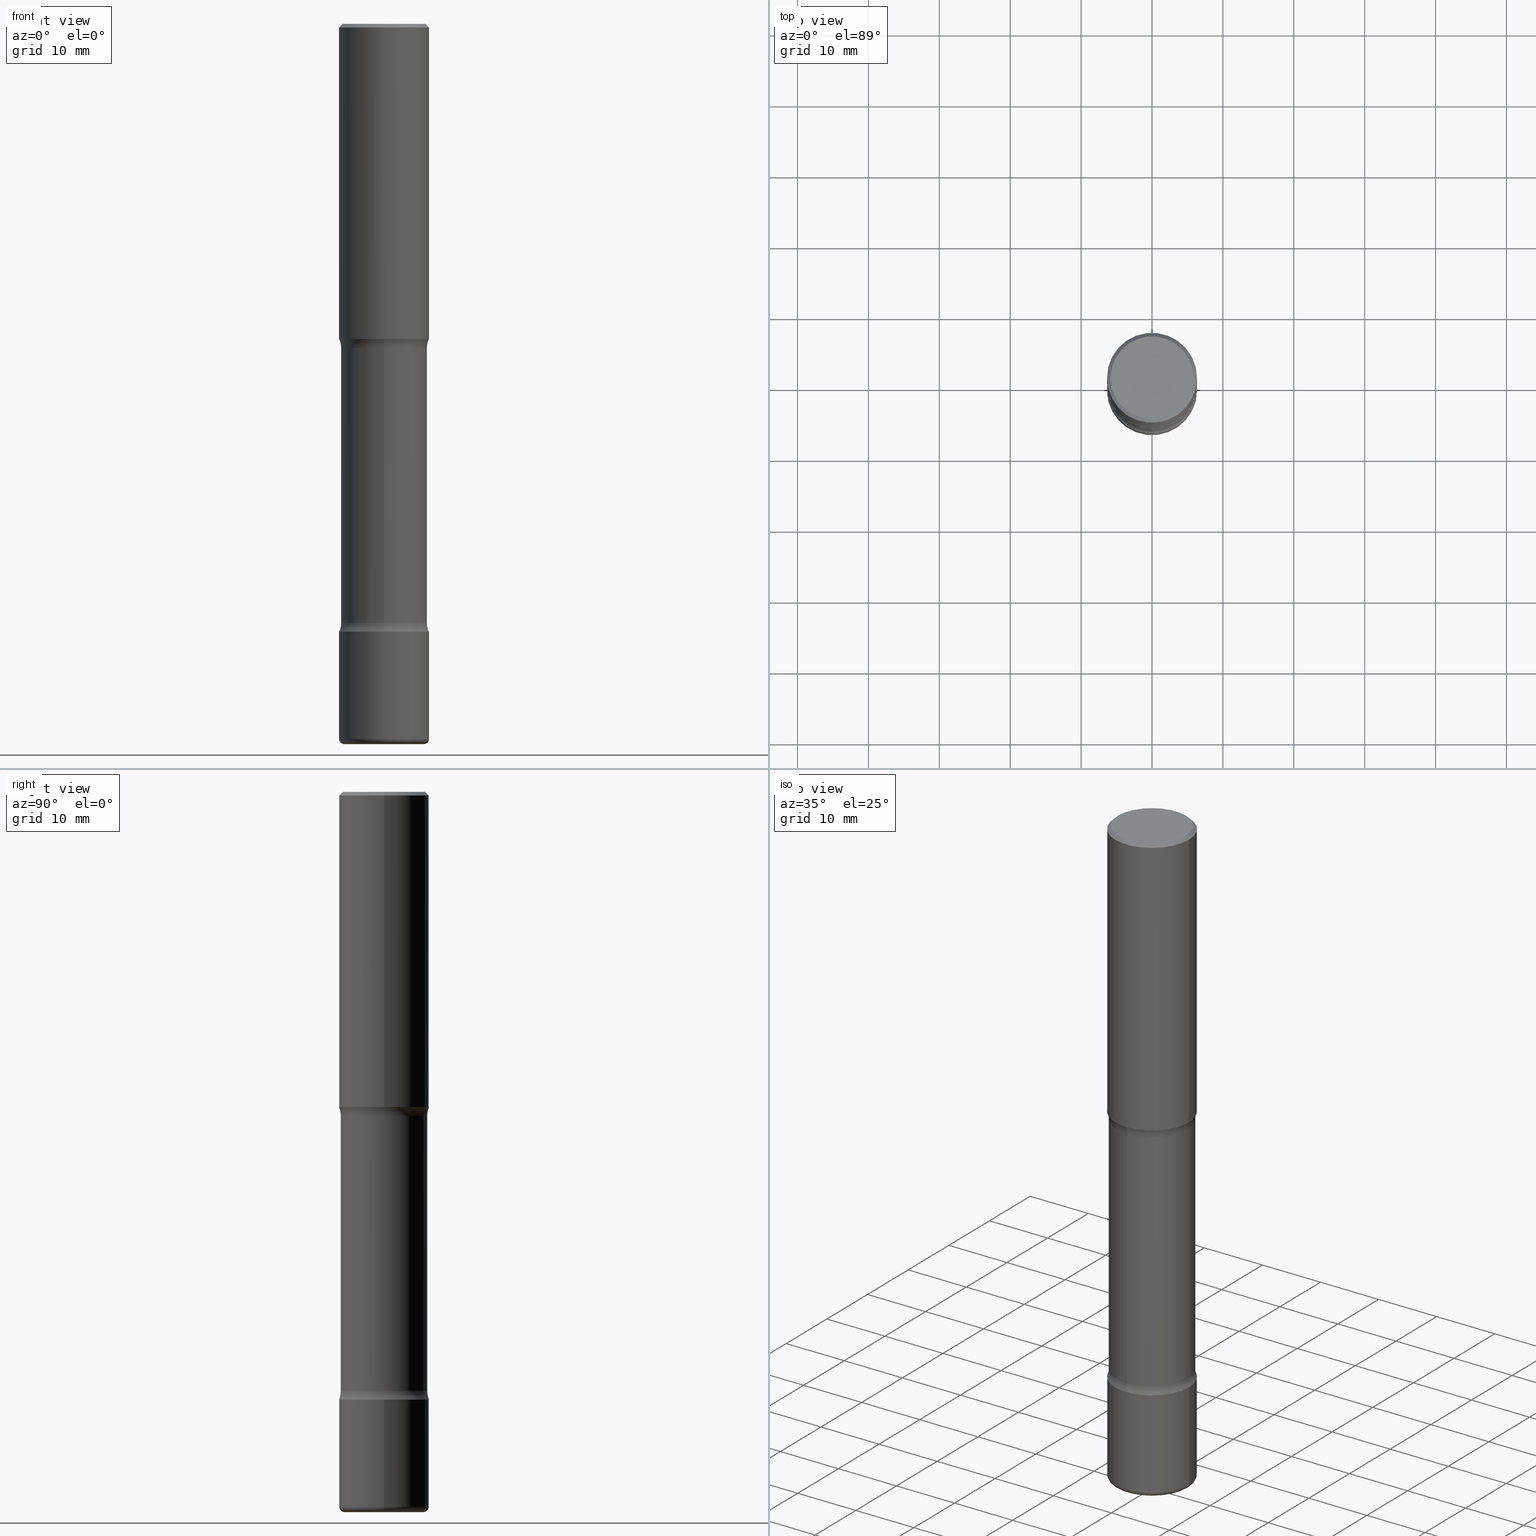
[diagram: canonical four-view strip — front | top / right | iso, engineering-drawing reading convention]
A machine part, canonical four-view strip (front | top / right | iso — engineering-drawing reading convention). The complete STEP part file that produces these views, byte-faithful:
ISO-10303-21;
HEADER;
FILE_DESCRIPTION (( 'STEP AP203' ),
    '1' );
FILE_NAME ('33512.STEP',
    '2024-03-01T22:42:19',
    ( '' ),
    ( '' ),
    'SwSTEP 2.0',
    'SolidWorks 2023',
    '' );
FILE_SCHEMA (( 'CONFIG_CONTROL_DESIGN' ));
ENDSEC;

DATA;
#1 = CLOSED_SHELL ( 'NONE', ( #302, #78, #387, #525, #112, #440 ) ) ;
#2 = VECTOR ( 'NONE', #270, 39.37007874015748143 ) ;
#3 = ORIENTED_EDGE ( 'NONE', *, *, #30, .F. ) ;
#4 = LOCAL_TIME ( 17, 42, 19.00000000000000000, #6 ) ;
#5 = ORIENTED_EDGE ( 'NONE', *, *, #121, .T. ) ;
#6 = COORDINATED_UNIVERSAL_TIME_OFFSET ( 5, 0, .BEHIND. ) ;
#7 = TOROIDAL_SURFACE ( 'NONE', #328, 0.2200000000000003619, 0.02999999999999998848 ) ;
#8 = MANIFOLD_SOLID_BREP ( 'Body-Move/Copy2[4]', #138 ) ;
#9 = ORIENTED_EDGE ( 'NONE', *, *, #303, .F. ) ;
#10 = DIRECTION ( 'NONE',  ( 2.445468806185136597E-29, -3.491481338843145583E-15, -1.000000000000000000 ) ) ;
#11 = DIRECTION ( 'NONE',  ( 1.000000000000000000, -6.982962677686267499E-15, 4.876176775795936353E-29 ) ) ;
#12 = CARTESIAN_POINT ( 'NONE',  ( -0.2200000000000003619, -1.229798689653506559E-14, -3.970000000000000195 ) ) ;
#13 = VECTOR ( 'NONE', #297, 39.37007874015748143 ) ;
#14 = EDGE_CURVE ( 'NONE', #68, #31, #109, .T. ) ;
#15 = DIRECTION ( 'NONE',  ( 1.000000000000000000, -6.982962677686270655E-15, 0.000000000000000000 ) ) ;
#16 = ORIENTED_EDGE ( 'NONE', *, *, #30, .T. ) ;
#17 = CARTESIAN_POINT ( 'NONE',  ( -2.504081769186527752E-15, -0.3650000000000117040, -3.326010205144334098 ) ) ;
#18 = EDGE_CURVE ( 'NONE', #431, #379, #96, .T. ) ;
#19 = PRODUCT ( '33512', '33512', '', ( #347 ) ) ;
#20 = EDGE_CURVE ( 'NONE', #173, #62, #224, .T. ) ;
#21 = EDGE_LOOP ( 'NONE', ( #295, #44, #3, #292 ) ) ;
#22 = DIRECTION ( 'NONE',  ( -6.982962677686266711E-15, -1.000000000000000000, 3.491481338843145583E-15 ) ) ;
#23 = DIRECTION ( 'NONE',  ( 1.000000000000000000, -6.982962677686267499E-15, 4.876176775795936353E-29 ) ) ;
#24 = AXIS2_PLACEMENT_3D ( 'NONE', #269, #49, #320 ) ;
#25 = AXIS2_PLACEMENT_3D ( 'NONE', #407, #22, #15 ) ;
#26 = ORIENTED_EDGE ( 'NONE', *, *, #281, .T. ) ;
#27 = APPLICATION_PROTOCOL_DEFINITION ( 'international standard', 'config_control_design', 1994, #492 ) ;
#28 = DIRECTION ( 'NONE',  ( -1.000000000000000000, 6.982962677686265922E-15, -4.876176775795935793E-29 ) ) ;
#29 = FACE_OUTER_BOUND ( 'NONE', #21, .T. ) ;
#30 = EDGE_CURVE ( 'NONE', #108, #176, #496, .T. ) ;
#31 = VERTEX_POINT ( 'NONE', #336 ) ;
#32 = CARTESIAN_POINT ( 'NONE',  ( 0.000000000000000000, 0.000000000000000000, 0.000000000000000000 ) ) ;
#33 = EDGE_LOOP ( 'NONE', ( #120, #333, #360, #9 ) ) ;
#34 = FACE_OUTER_BOUND ( 'NONE', #80, .T. ) ;
#35 = AXIS2_PLACEMENT_3D ( 'NONE', #249, #353, #520 ) ;
#36 = AXIS2_PLACEMENT_3D ( 'NONE', #312, #100, #11 ) ;
#37 = ORGANIZATION ( 'UNSPECIFIED', 'UNSPECIFIED', '' ) ;
#38 = ORIENTED_EDGE ( 'NONE', *, *, #227, .T. ) ;
#39 = CARTESIAN_POINT ( 'NONE',  ( 8.253457220874836014E-29, -1.178374951859561452E-14, -3.375000000000000000 ) ) ;
#40 = ORIENTED_EDGE ( 'NONE', *, *, #215, .F. ) ;
#41 = CALENDAR_DATE ( 2024, 1, 3 ) ;
#42 = DATE_AND_TIME ( #41, #45 ) ;
#43 = AXIS2_PLACEMENT_3D ( 'NONE', #199, #61, #460 ) ;
#44 = ORIENTED_EDGE ( 'NONE', *, *, #380, .T. ) ;
#45 = LOCAL_TIME ( 17, 42, 19.00000000000000000, #214 ) ;
#46 = ORIENTED_EDGE ( 'NONE', *, *, #327, .T. ) ;
#47 = DIRECTION ( 'NONE',  ( -1.000000000000000000, 6.982962677686267499E-15, 0.000000000000000000 ) ) ;
#48 = ADVANCED_BREP_SHAPE_REPRESENTATION ( '33512', ( #192, #389, #8, #429 ), #383 ) ;
#49 = DIRECTION ( 'NONE',  ( -1.000000000000000000, 6.982962677686265922E-15, -4.883557194083112340E-29 ) ) ;
#50 = DIRECTION ( 'NONE',  ( 1.000000000000000000, -6.982962677686265922E-15, 4.876225828469305518E-29 ) ) ;
#51 = DIRECTION ( 'NONE',  ( -2.445468806185136597E-29, 3.491481338843145583E-15, 1.000000000000000000 ) ) ;
#52 = CARTESIAN_POINT ( 'NONE',  ( 0.2300000000000001488, -1.681434332853599997E-15, 4.268512490111905999E-18 ) ) ;
#53 = CIRCLE ( 'NONE', #139, 0.2399999999999991585 ) ;
#54 = AXIS2_PLACEMENT_3D ( 'NONE', #538, #234, #140 ) ;
#55 = ADVANCED_FACE ( 'NONE', ( #29 ), #338, .T. ) ;
#56 = ORIENTED_EDGE ( 'NONE', *, *, #547, .F. ) ;
#57 = DIRECTION ( 'NONE',  ( 2.131045706918198209E-29, -3.941753112844835198E-15, -1.000000000000000000 ) ) ;
#58 = DIRECTION ( 'NONE',  ( 2.131045706918198209E-29, -3.941753112844835198E-15, -1.000000000000000000 ) ) ;
#59 = ORIENTED_EDGE ( 'NONE', *, *, #437, .T. ) ;
#60 = DIRECTION ( 'NONE',  ( -2.445468806185136597E-29, 3.491481338843145583E-15, 1.000000000000000000 ) ) ;
#61 = DIRECTION ( 'NONE',  ( -2.445468806185136597E-29, 3.491481338843145583E-15, 1.000000000000000000 ) ) ;
#62 = VERTEX_POINT ( 'NONE', #245 ) ;
#63 = DIRECTION ( 'NONE',  ( 0.000000000000000000, 0.000000000000000000, 1.000000000000000000 ) ) ;
#64 = DIRECTION ( 'NONE',  ( 2.131045706918198209E-29, -3.941753112844835198E-15, -1.000000000000000000 ) ) ;
#65 = CIRCLE ( 'NONE', #456, 0.2500000000000003331 ) ;
#66 = ORIENTED_EDGE ( 'NONE', *, *, #126, .F. ) ;
#67 = DIRECTION ( 'NONE',  ( 1.000000000000000000, -6.982962677686265133E-15, 0.000000000000000000 ) ) ;
#68 = VERTEX_POINT ( 'NONE', #505 ) ;
#69 = PLANE ( 'NONE',  #349 ) ;
#70 = DIRECTION ( 'NONE',  ( -2.445468806185136597E-29, 3.491481338843145583E-15, 1.000000000000000000 ) ) ;
#71 = EDGE_LOOP ( 'NONE', ( #219, #207 ) ) ;
#72 = CARTESIAN_POINT ( 'NONE',  ( 4.790507947132762699E-29, -5.378400710222759193E-15, -1.750000000000000000 ) ) ;
#73 = APPROVAL_DATE_TIME ( #174, #409 ) ;
#74 = DIRECTION ( 'NONE',  ( 1.000000000000000000, -6.982962677686266711E-15, 4.876176775795935793E-29 ) ) ;
#75 = CALENDAR_DATE ( 2024, 1, 3 ) ;
#76 = AXIS2_PLACEMENT_3D ( 'NONE', #32, #165, #23 ) ;
#77 = EDGE_CURVE ( 'NONE', #413, #339, #392, .T. ) ;
#78 = ADVANCED_FACE ( 'NONE', ( #103 ), #7, .T. ) ;
#79 = UNCERTAINTY_MEASURE_WITH_UNIT (LENGTH_MEASURE( 1.000000000000000082E-05 ), #250, 'distance_accuracy_value', 'NONE');
#80 = EDGE_LOOP ( 'NONE', ( #311, #146 ) ) ;
#81 = ORIENTED_EDGE ( 'NONE', *, *, #424, .F. ) ;
#82 = AXIS2_PLACEMENT_3D ( 'NONE', #425, #549, #74 ) ;
#83 = CIRCLE ( 'NONE', #417, 0.2500000000000003331 ) ;
#84 = PERSON_AND_ORGANIZATION_ROLE ( 'design_supplier' ) ;
#85 = ORIENTED_EDGE ( 'NONE', *, *, #488, .T. ) ;
#86 = DIRECTION ( 'NONE',  ( 6.982962677686265922E-15, 1.000000000000000000, -3.941753112844835198E-15 ) ) ;
#87 = EDGE_LOOP ( 'NONE', ( #418, #189, #46, #59 ) ) ;
#88 = VECTOR ( 'NONE', #271, 39.37007874015748143 ) ;
#89 = DIRECTION ( 'NONE',  ( -2.445468806185136597E-29, 3.491481338843145583E-15, 1.000000000000000000 ) ) ;
#90 = AXIS2_PLACEMENT_3D ( 'NONE', #465, #240, #247 ) ;
#91 = FACE_OUTER_BOUND ( 'NONE', #461, .T. ) ;
#92 = DIRECTION ( 'NONE',  ( -1.000000000000000000, 7.105427357600993970E-15, 0.000000000000000000 ) ) ;
#93 = DIRECTION ( 'NONE',  ( -2.445468806185136597E-29, 3.491481338843145583E-15, 1.000000000000000000 ) ) ;
#94 = DIRECTION ( 'NONE',  ( 1.000000000000000000, -6.860497997771530774E-15, 4.835284640756367207E-29 ) ) ;
#95 = DIRECTION ( 'NONE',  ( 6.982962677686265922E-15, 1.000000000000000000, -4.370956789862815627E-15 ) ) ;
#96 = CIRCLE ( 'NONE', #177, 0.2500000000000003331 ) ;
#97 = VERTEX_POINT ( 'NONE', #117 ) ;
#98 = PERSON_AND_ORGANIZATION ( #232, #37 ) ;
#99 = AXIS2_PLACEMENT_3D ( 'NONE', #500, #115, #107 ) ;
#100 = DIRECTION ( 'NONE',  ( -2.445468806185136597E-29, 3.491481338843145583E-15, 1.000000000000000000 ) ) ;
#101 = EDGE_LOOP ( 'NONE', ( #438, #66, #470, #515 ) ) ;
#102 = DIRECTION ( 'NONE',  ( 6.982962677686265922E-15, 1.000000000000000000, -3.941753112844835198E-15 ) ) ;
#103 = FACE_OUTER_BOUND ( 'NONE', #543, .T. ) ;
#104 = ORIENTED_EDGE ( 'NONE', *, *, #307, .T. ) ;
#105 = DIRECTION ( 'NONE',  ( 2.131045706918198209E-29, -3.941753112844835198E-15, -1.000000000000000000 ) ) ;
#106 = DIRECTION ( 'NONE',  ( 6.982962677686265922E-15, 1.000000000000000000, -4.553079989440439881E-15 ) ) ;
#107 = DIRECTION ( 'NONE',  ( 1.000000000000000000, -6.982962677686267499E-15, 0.000000000000000000 ) ) ;
#108 = VERTEX_POINT ( 'NONE', #236 ) ;
#109 = CIRCLE ( 'NONE', #35, 0.2399999999999999356 ) ;
#110 = AXIS2_PLACEMENT_3D ( 'NONE', #485, #133, #531 ) ;
#111 = TOROIDAL_SURFACE ( 'NONE', #306, 0.3650000000000000466, 0.1250000000000000555 ) ;
#112 = ADVANCED_FACE ( 'NONE', ( #416 ), #202, .T. ) ;
#113 = ORIENTED_EDGE ( 'NONE', *, *, #281, .F. ) ;
#114 = DIRECTION ( 'NONE',  ( 6.982962677686265922E-15, 1.000000000000000000, -4.370956789862832194E-15 ) ) ;
#115 = DIRECTION ( 'NONE',  ( -2.445468806185136597E-29, 3.491481338843145583E-15, 1.000000000000000000 ) ) ;
#116 = LINE ( 'NONE', #201, #172 ) ;
#117 = CARTESIAN_POINT ( 'NONE',  ( -0.2500000000000003331, -1.104610837750119891E-14, -3.375000000000000000 ) ) ;
#118 = COORDINATED_UNIVERSAL_TIME_OFFSET ( 5, 0, .BEHIND. ) ;
#119 = ADVANCED_FACE ( 'NONE', ( #155 ), #396, .T. ) ;
#120 = ORIENTED_EDGE ( 'NONE', *, *, #254, .T. ) ;
#121 = EDGE_CURVE ( 'NONE', #376, #108, #513, .T. ) ;
#122 = SECURITY_CLASSIFICATION_LEVEL ( 'unclassified' ) ;
#123 = AXIS2_PLACEMENT_3D ( 'NONE', #151, #208, #284 ) ;
#124 = ORIENTED_EDGE ( 'NONE', *, *, #227, .F. ) ;
#125 = DIMENSIONAL_EXPONENTS ( 1.000000000000000000, 0.000000000000000000, 0.000000000000000000, 0.000000000000000000, 0.000000000000000000, 0.000000000000000000, 0.000000000000000000 ) ;
#126 = EDGE_CURVE ( 'NONE', #309, #376, #289, .T. ) ;
#127 = APPROVAL_STATUS ( 'not_yet_approved' ) ;
#128 = EDGE_CURVE ( 'NONE', #502, #97, #404, .T. ) ;
#129 = DATE_TIME_ROLE ( 'classification_date' ) ;
#130 = ORIENTED_EDGE ( 'NONE', *, *, #401, .T. ) ;
#131 = AXIS2_PLACEMENT_3D ( 'NONE', #443, #402, #316 ) ;
#132 = AXIS2_PLACEMENT_3D ( 'NONE', #420, #377, #28 ) ;
#133 = DIRECTION ( 'NONE',  ( -2.131045706918197928E-29, 3.941753112844835198E-15, 1.000000000000000000 ) ) ;
#134 = ORIENTED_EDGE ( 'NONE', *, *, #501, .T. ) ;
#135 = COORDINATED_UNIVERSAL_TIME_OFFSET ( 5, 0, .BEHIND. ) ;
#136 = ADVANCED_FACE ( 'NONE', ( #34 ), #203, .F. ) ;
#137 = ADVANCED_FACE ( 'NONE', ( #386 ), #69, .F. ) ;
#138 = CLOSED_SHELL ( 'NONE', ( #462, #430, #480, #291, #399, #170, #167, #546 ) ) ;
#139 = AXIS2_PLACEMENT_3D ( 'NONE', #313, #182, #397 ) ;
#140 = DIRECTION ( 'NONE',  ( 6.982962677686265922E-15, 1.000000000000000000, -3.941753112844835198E-15 ) ) ;
#141 = AXIS2_PLACEMENT_3D ( 'NONE', #553, #58, #504 ) ;
#142 = CARTESIAN_POINT ( 'NONE',  ( 4.279570410823988484E-29, -6.110092342975504671E-15, -1.750000000000000000 ) ) ;
#143 = APPLICATION_PROTOCOL_DEFINITION ( 'international standard', 'config_control_design', 1994, #519 ) ;
#144 = FACE_OUTER_BOUND ( 'NONE', #246, .T. ) ;
#145 = DIRECTION ( 'NONE',  ( 1.000000000000000000, -6.982962677686267499E-15, 0.000000000000000000 ) ) ;
#146 = ORIENTED_EDGE ( 'NONE', *, *, #237, .F. ) ;
#147 = DIRECTION ( 'NONE',  ( 1.000000000000000000, -6.982962677686267499E-15, 0.000000000000000000 ) ) ;
#148 = DIRECTION ( 'NONE',  ( 1.000000000000000000, -6.982962677686269077E-15, 0.000000000000000000 ) ) ;
#149 = CARTESIAN_POINT ( 'NONE',  ( -0.2500000000000002220, 1.776356839400252042E-15, -1.229733772563727566E-29 ) ) ;
#150 = AXIS2_PLACEMENT_3D ( 'NONE', #489, #220, #86 ) ;
#151 = CARTESIAN_POINT ( 'NONE',  ( 4.279570410823988484E-29, -6.110092342975504671E-15, -1.750000000000000000 ) ) ;
#152 = ORIENTED_EDGE ( 'NONE', *, *, #372, .F. ) ;
#153 = CARTESIAN_POINT ( 'NONE',  ( -1.715124499442829642E-15, -0.2500000000000046629, -1.749999999999999112 ) ) ;
#154 = LINE ( 'NONE', #149, #357 ) ;
#155 = FACE_OUTER_BOUND ( 'NONE', #101, .T. ) ;
#156 = ORIENTED_EDGE ( 'NONE', *, *, #466, .T. ) ;
#157 = DIRECTION ( 'NONE',  ( -1.000000000000000000, 6.982962677686265922E-15, -4.876176775795935793E-29 ) ) ;
#158 = DIRECTION ( 'NONE',  ( -2.445468806185136597E-29, 3.491481338843145583E-15, 1.000000000000000000 ) ) ;
#159 = FACE_OUTER_BOUND ( 'NONE', #196, .T. ) ;
#160 = DIRECTION ( 'NONE',  ( 1.000000000000000000, -6.982962677686269077E-15, 4.883557194083113462E-29 ) ) ;
#161 = VECTOR ( 'NONE', #264, 39.37007874015748143 ) ;
#162 = CIRCLE ( 'NONE', #483, 0.2500000000000003331 ) ;
#163 = CYLINDRICAL_SURFACE ( 'NONE', #351, 0.2399999999999995470 ) ;
#164 = CIRCLE ( 'NONE', #474, 0.2499999999999993616 ) ;
#165 = DIRECTION ( 'NONE',  ( -2.445468806185136597E-29, 3.491481338843145583E-15, 1.000000000000000000 ) ) ;
#166 = PERSON_AND_ORGANIZATION_ROLE ( 'creator' ) ;
#167 = ADVANCED_FACE ( 'NONE', ( #230 ), #171, .F. ) ;
#168 = DIRECTION ( 'NONE',  ( 2.131045706918198209E-29, -3.941753112844835198E-15, -1.000000000000000000 ) ) ;
#169 = APPROVAL ( #469, 'UNSPECIFIED' ) ;
#170 = ADVANCED_FACE ( 'NONE', ( #178 ), #526, .F. ) ;
#171 = TOROIDAL_SURFACE ( 'NONE', #150, 0.3650000000000000466, 0.1250000000000000555 ) ;
#172 = VECTOR ( 'NONE', #258, 39.37007874015748143 ) ;
#173 = VERTEX_POINT ( 'NONE', #310 ) ;
#174 = DATE_AND_TIME ( #400, #557 ) ;
#175 = PERSON_AND_ORGANIZATION ( #232, #37 ) ;
#176 = VERTEX_POINT ( 'NONE', #406 ) ;
#177 = AXIS2_PLACEMENT_3D ( 'NONE', #259, #200, #67 ) ;
#178 = FACE_OUTER_BOUND ( 'NONE', #506, .T. ) ;
#179 = VERTEX_POINT ( 'NONE', #479 ) ;
#180 = EDGE_CURVE ( 'NONE', #309, #176, #218, .T. ) ;
#181 = EDGE_LOOP ( 'NONE', ( #152, #40, #375, #423 ) ) ;
#182 = DIRECTION ( 'NONE',  ( 2.131045706918198209E-29, -3.941753112844835198E-15, -1.000000000000000000 ) ) ;
#183 = DIRECTION ( 'NONE',  ( 1.000000000000000000, -6.860497997771530774E-15, 4.835284640756367207E-29 ) ) ;
#184 = CARTESIAN_POINT ( 'NONE',  ( -0.2500000000000001110, 1.675911042644704760E-15, -0.02000000000000000042 ) ) ;
#185 = AXIS2_PLACEMENT_3D ( 'NONE', #491, #89, #147 ) ;
#186 = CARTESIAN_POINT ( 'NONE',  ( -1.043851414335219820E-46, 1.490343170380447200E-32, 4.268512490100411279E-18 ) ) ;
#187 = CIRCLE ( 'NONE', #141, 0.2499999999999993616 ) ;
#188 = DIRECTION ( 'NONE',  ( 6.860497997771532351E-15, 1.000000000000000000, 0.000000000000000000 ) ) ;
#189 = ORIENTED_EDGE ( 'NONE', *, *, #471, .F. ) ;
#190 = CARTESIAN_POINT ( 'NONE',  ( 0.000000000000000000, 0.000000000000000000, 0.000000000000000000 ) ) ;
#191 = CARTESIAN_POINT ( 'NONE',  ( 1.675911042644796465E-15, 0.2399999999999853084, -4.000000000000001776 ) ) ;
#192 = MANIFOLD_SOLID_BREP ( 'Body-Move/Copy2[1]', #1 ) ;
#193 = VERTEX_POINT ( 'NONE', #368 ) ;
#194 = CARTESIAN_POINT ( 'NONE',  ( 0.2500000000000003331, -7.855833012397073715E-15, -1.750000000000000000 ) ) ;
#195 = AXIS2_PLACEMENT_3D ( 'NONE', #342, #294, #332 ) ;
#196 = EDGE_LOOP ( 'NONE', ( #113, #38, #286, #362 ) ) ;
#197 = DIRECTION ( 'NONE',  ( 6.982962677686265922E-15, 1.000000000000000000, -4.553079989440446980E-15 ) ) ;
#198 = FACE_OUTER_BOUND ( 'NONE', #398, .T. ) ;
#199 = CARTESIAN_POINT ( 'NONE',  ( -1.043851414335219820E-46, 1.490343170380447200E-32, 4.268512490100411279E-18 ) ) ;
#200 = DIRECTION ( 'NONE',  ( -2.445468806185136597E-29, 3.491481338843145583E-15, 1.000000000000000000 ) ) ;
#201 = CARTESIAN_POINT ( 'NONE',  ( -0.2500000000000003331, 1.776356839400252831E-15, -1.229733772563727987E-29 ) ) ;
#202 = CYLINDRICAL_SURFACE ( 'NONE', #82, 0.2500000000000003331 ) ;
#203 = PLANE ( 'NONE',  #123 ) ;
#204 = AXIS2_PLACEMENT_3D ( 'NONE', #533, #363, #503 ) ;
#205 = CIRCLE ( 'NONE', #358, 0.2399999999999999356 ) ;
#206 = CC_DESIGN_PERSON_AND_ORGANIZATION_ASSIGNMENT ( #391, #414, ( #19 ) ) ;
#207 = ORIENTED_EDGE ( 'NONE', *, *, #359, .T. ) ;
#208 = DIRECTION ( 'NONE',  ( -2.438088387897960049E-29, 3.491481338843145188E-15, 1.000000000000000000 ) ) ;
#209 = APPROVAL_ROLE ( '' ) ;
#210 = PERSON_AND_ORGANIZATION_ROLE ( 'classification_officer' ) ;
#211 = CONICAL_SURFACE ( 'NONE', #522, 0.2500000000000001110, 0.7853981633974479459 ) ;
#212 = CC_DESIGN_SECURITY_CLASSIFICATION ( #315, ( #484 ) ) ;
#213 = ADVANCED_FACE ( 'NONE', ( #91 ), #211, .T. ) ;
#214 = COORDINATED_UNIVERSAL_TIME_OFFSET ( 5, 0, .BEHIND. ) ;
#215 = EDGE_CURVE ( 'NONE', #493, #426, #53, .T. ) ;
#216 = CIRCLE ( 'NONE', #242, 0.2500000000000003886 ) ;
#217 = EDGE_CURVE ( 'NONE', #493, #384, #276, .T. ) ;
#218 = LINE ( 'NONE', #184, #161 ) ;
#219 = ORIENTED_EDGE ( 'NONE', *, *, #126, .T. ) ;
#220 = DIRECTION ( 'NONE',  ( 2.131045706918198209E-29, -3.941753112844835198E-15, -1.000000000000000000 ) ) ;
#221 = CARTESIAN_POINT ( 'NONE',  ( 4.894907439142729913E-29, -5.571506386592702620E-15, -1.798989794855663904 ) ) ;
#222 = DIRECTION ( 'NONE',  ( -2.445468806185136877E-29, 3.491481338843145188E-15, 1.000000000000000000 ) ) ;
#223 = FACE_OUTER_BOUND ( 'NONE', #181, .T. ) ;
#224 = CIRCLE ( 'NONE', #542, 0.2200000000000003619 ) ;
#225 = DIRECTION ( 'NONE',  ( 6.860497997771530774E-15, 1.000000000000000000, 0.000000000000000000 ) ) ;
#226 = DIRECTION ( 'NONE',  ( 6.982962677686265922E-15, 1.000000000000000000, -3.941753112844835198E-15 ) ) ;
#227 = EDGE_CURVE ( 'NONE', #426, #493, #464, .T. ) ;
#228 = ORIENTED_EDGE ( 'NONE', *, *, #237, .T. ) ;
#229 = CARTESIAN_POINT ( 'NONE',  ( 2.548781377355569154E-15, 0.3649999999999884448, -3.326010205144337206 ) ) ;
#230 = FACE_OUTER_BOUND ( 'NONE', #87, .T. ) ;
#231 = CARTESIAN_POINT ( 'NONE',  ( 0.2500000000000003331, -1.352949018801718435E-14, -3.375000000000000000 ) ) ;
#232 = PERSON ( 'UNSPECIFIED', 'UNSPECIFIED', 'UNSPECIFIED', ('UNSPECIFIED'), ('UNSPECIFIED'), ('UNSPECIFIED') ) ;
#233 = ORIENTED_EDGE ( 'NONE', *, *, #20, .F. ) ;
#234 = DIRECTION ( 'NONE',  ( 2.131045706918197928E-29, -3.941753112844835198E-15, -1.000000000000000000 ) ) ;
#235 = PRODUCT_DEFINITION_SHAPE ( 'NONE', 'NONE',  #263 ) ;
#236 = CARTESIAN_POINT ( 'NONE',  ( 0.2500000000000001110, -1.784954126219746583E-15, -0.02000000000000000042 ) ) ;
#237 = EDGE_CURVE ( 'NONE', #379, #431, #162, .T. ) ;
#238 = CC_DESIGN_PERSON_AND_ORGANIZATION_ASSIGNMENT ( #175, #84, ( #484 ) ) ;
#239 = EDGE_LOOP ( 'NONE', ( #124, #265, #134, #458 ) ) ;
#240 = DIRECTION ( 'NONE',  ( -2.445468806185136597E-29, 3.491481338843145583E-15, 1.000000000000000000 ) ) ;
#241 = PLANE ( 'NONE',  #132 ) ;
#242 = AXIS2_PLACEMENT_3D ( 'NONE', #442, #51, #145 ) ;
#243 = CARTESIAN_POINT ( 'NONE',  ( 8.253457220874836014E-29, -1.178374951859561452E-14, -3.375000000000000000 ) ) ;
#244 = TOROIDAL_SURFACE ( 'NONE', #90, 0.2200000000000003619, 0.02999999999999998848 ) ;
#245 = CARTESIAN_POINT ( 'NONE',  ( 0.2200000000000003619, -1.550217714446356385E-14, -4.000000000000000000 ) ) ;
#246 = EDGE_LOOP ( 'NONE', ( #524, #233 ) ) ;
#247 = DIRECTION ( 'NONE',  ( 1.000000000000000000, -6.982962677686269077E-15, 4.883557194083113462E-29 ) ) ;
#248 = CARTESIAN_POINT ( 'NONE',  ( 9.781875224740546387E-29, -1.396592535537258233E-14, -4.000000000000000000 ) ) ;
#249 = CARTESIAN_POINT ( 'NONE',  ( 8.149057728864868240E-29, -1.159064384222567188E-14, -3.326010205144335430 ) ) ;
#250 =( CONVERSION_BASED_UNIT ( 'INCH', #293 ) LENGTH_UNIT ( ) NAMED_UNIT ( #125 ) );
#251 =( LENGTH_UNIT ( ) NAMED_UNIT ( * ) SI_UNIT ( $, .METRE. ) );
#252 = CARTESIAN_POINT ( 'NONE',  ( 0.2500000000000001110, -1.784954126219746583E-15, -0.02000000000000000042 ) ) ;
#253 = AXIS2_PLACEMENT_3D ( 'NONE', #455, #554, #555 ) ;
#254 = EDGE_CURVE ( 'NONE', #339, #413, #216, .T. ) ;
#255 = APPROVAL_PERSON_ORGANIZATION ( #352, #169, #209 ) ;
#256 = DATE_AND_TIME ( #75, #329 ) ;
#257 = ORIENTED_EDGE ( 'NONE', *, *, #348, .T. ) ;
#258 = DIRECTION ( 'NONE',  ( -2.445468806185136877E-29, 3.491481338843145188E-15, 1.000000000000000000 ) ) ;
#259 = CARTESIAN_POINT ( 'NONE',  ( 4.279570410823988484E-29, -6.110092342975504671E-15, -1.750000000000000000 ) ) ;
#260 = CIRCLE ( 'NONE', #340, 0.2300000000000001488 ) ;
#261 = CC_DESIGN_APPROVAL ( #409, ( #263 ) ) ;
#262 = EDGE_LOOP ( 'NONE', ( #410, #130, #447, #540 ) ) ;
#263 = PRODUCT_DEFINITION ( 'UNKNOWN', '', #484, #341 ) ;
#264 = DIRECTION ( 'NONE',  ( -0.7071067811865472397, 2.468850131082253905E-15, -0.7071067811865477948 ) ) ;
#265 = ORIENTED_EDGE ( 'NONE', *, *, #372, .T. ) ;
#266 = ADVANCED_FACE ( 'NONE', ( #477 ), #326, .T. ) ;
#267 = AXIS2_PLACEMENT_3D ( 'NONE', #221, #361, #536 ) ;
#268 = CIRCLE ( 'NONE', #25, 0.02999999999999998848 ) ;
#269 = CARTESIAN_POINT ( 'NONE',  ( 2.548781377355530106E-15, 0.3649999999999936073, -1.798989794855665014 ) ) ;
#270 = DIRECTION ( 'NONE',  ( -2.445468806185136877E-29, 3.491481338843145188E-15, 1.000000000000000000 ) ) ;
#271 = DIRECTION ( 'NONE',  ( 2.131045706918198209E-29, -3.941753112844835198E-15, -1.000000000000000000 ) ) ;
#272 = DIRECTION ( 'NONE',  ( 1.000000000000000000, -6.982962677686265133E-15, 0.000000000000000000 ) ) ;
#273 = CARTESIAN_POINT ( 'NONE',  ( 0.2500000000000003331, -1.560692158462885722E-14, -3.969999999999999307 ) ) ;
#274 = CARTESIAN_POINT ( 'NONE',  ( 0.2500000000000002220, -1.745740669421568453E-15, 1.219044193948985209E-29 ) ) ;
#275 = CARTESIAN_POINT ( 'NONE',  ( 4.923974221938839572E-29, -5.529881099250136076E-15, -1.798989794855663682 ) ) ;
#276 = CIRCLE ( 'NONE', #24, 0.1249999999999999584 ) ;
#277 = VECTOR ( 'NONE', #495, 39.37007874015748143 ) ;
#278 = ORIENTED_EDGE ( 'NONE', *, *, #424, .T. ) ;
#279 = LINE ( 'NONE', #374, #2 ) ;
#280 = CARTESIAN_POINT ( 'NONE',  ( 1.675911042644746767E-15, 0.2399999999999935796, -1.798989794855664792 ) ) ;
#281 = EDGE_CURVE ( 'NONE', #426, #68, #364, .T. ) ;
#282 = ORIENTED_EDGE ( 'NONE', *, *, #501, .F. ) ;
#283 = CARTESIAN_POINT ( 'NONE',  ( -1.680822009453971188E-15, -0.2400000000000047373, -1.798989794855663016 ) ) ;
#284 = DIRECTION ( 'NONE',  ( 1.000000000000000000, -6.982962677686265922E-15, 4.876176775795935793E-29 ) ) ;
#285 = EDGE_CURVE ( 'NONE', #493, #31, #487, .T. ) ;
#286 = ORIENTED_EDGE ( 'NONE', *, *, #285, .T. ) ;
#287 = DIRECTION ( 'NONE',  ( -2.445468806185136597E-29, 3.491481338843145583E-15, 1.000000000000000000 ) ) ;
#288 = ORIENTED_EDGE ( 'NONE', *, *, #303, .T. ) ;
#289 = CIRCLE ( 'NONE', #43, 0.2300000000000001488 ) ;
#290 = TOROIDAL_SURFACE ( 'NONE', #405, 0.3649999999999991029, 0.1249999999999999584 ) ;
#291 = ADVANCED_FACE ( 'NONE', ( #223 ), #472, .F. ) ;
#292 = ORIENTED_EDGE ( 'NONE', *, *, #488, .F. ) ;
#293 = LENGTH_MEASURE_WITH_UNIT ( LENGTH_MEASURE( 0.02539999999999999897 ), #251 );
#294 = DIRECTION ( 'NONE',  ( 2.445468806185136597E-29, -3.491481338843145583E-15, -1.000000000000000000 ) ) ;
#295 = ORIENTED_EDGE ( 'NONE', *, *, #18, .T. ) ;
#296 = CC_DESIGN_PERSON_AND_ORGANIZATION_ASSIGNMENT ( #432, #210, ( #315 ) ) ;
#297 = DIRECTION ( 'NONE',  ( 0.7071067811865472397, -7.319954787623254468E-15, -0.7071067811865477948 ) ) ;
#298 = APPROVAL_DATE_TIME ( #256, #169 ) ;
#299 = ORIENTED_EDGE ( 'NONE', *, *, #437, .F. ) ;
#300 = VECTOR ( 'NONE', #318, 39.37007874015748143 ) ;
#301 = EDGE_CURVE ( 'NONE', #176, #108, #517, .T. ) ;
#302 = ADVANCED_FACE ( 'NONE', ( #541 ), #403, .T. ) ;
#303 = EDGE_CURVE ( 'NONE', #339, #502, #279, .T. ) ;
#304 = COORDINATED_UNIVERSAL_TIME_OFFSET ( 5, 0, .BEHIND. ) ;
#305 = CIRCLE ( 'NONE', #445, 0.1249999999999999584 ) ;
#306 = AXIS2_PLACEMENT_3D ( 'NONE', #324, #57, #102 ) ;
#307 = EDGE_CURVE ( 'NONE', #173, #413, #314, .T. ) ;
#308 = PRODUCT_RELATED_PRODUCT_CATEGORY ( 'detail', '', ( #19 ) ) ;
#309 = VERTEX_POINT ( 'NONE', #454 ) ;
#310 = CARTESIAN_POINT ( 'NONE',  ( -0.2200000000000003619, -1.224377770625369636E-14, -4.000000000000000000 ) ) ;
#311 = ORIENTED_EDGE ( 'NONE', *, *, #18, .F. ) ;
#312 = CARTESIAN_POINT ( 'NONE',  ( 0.000000000000000000, 0.000000000000000000, 0.000000000000000000 ) ) ;
#313 = CARTESIAN_POINT ( 'NONE',  ( 4.894907439142729913E-29, -5.571506386592702620E-15, -1.798989794855663904 ) ) ;
#314 = CIRCLE ( 'NONE', #556, 0.02999999999999998848 ) ;
#315 = SECURITY_CLASSIFICATION ( '', '', #122 ) ;
#316 = DIRECTION ( 'NONE',  ( 1.000000000000000000, -6.982962677686268288E-15, 0.000000000000000000 ) ) ;
#317 = DIRECTION ( 'NONE',  ( 2.131045706918198209E-29, -3.941753112844835198E-15, -1.000000000000000000 ) ) ;
#318 = DIRECTION ( 'NONE',  ( 2.131045706918198209E-29, -3.941753112844835198E-15, -1.000000000000000000 ) ) ;
#319 = CC_DESIGN_PERSON_AND_ORGANIZATION_ASSIGNMENT ( #516, #345, ( #484 ) ) ;
#320 = DIRECTION ( 'NONE',  ( -6.982962677686265133E-15, -1.000000000000000000, 0.000000000000000000 ) ) ;
#321 = FACE_OUTER_BOUND ( 'NONE', #476, .T. ) ;
#322 = DIRECTION ( 'NONE',  ( 6.982962677686265922E-15, 1.000000000000000000, -4.553079989440446980E-15 ) ) ;
#323 = ORIENTED_EDGE ( 'NONE', *, *, #466, .F. ) ;
#324 = CARTESIAN_POINT ( 'NONE',  ( 8.133654205733899792E-29, -1.161270256406331038E-14, -3.326010205144335430 ) ) ;
#325 = DIRECTION ( 'NONE',  ( 6.982962677686265922E-15, 1.000000000000000000, -3.941753112844835198E-15 ) ) ;
#326 = CYLINDRICAL_SURFACE ( 'NONE', #36, 0.2500000000000002220 ) ;
#327 = EDGE_CURVE ( 'NONE', #179, #31, #381, .T. ) ;
#328 = AXIS2_PLACEMENT_3D ( 'NONE', #422, #158, #160 ) ;
#329 = LOCAL_TIME ( 17, 42, 19.00000000000000000, #118 ) ;
#330 = ORIENTED_EDGE ( 'NONE', *, *, #128, .T. ) ;
#331 = CARTESIAN_POINT ( 'NONE',  ( 8.149057728864868240E-29, -1.159064384222567188E-14, -3.326010205144335430 ) ) ;
#332 = DIRECTION ( 'NONE',  ( -1.000000000000000000, 6.982962677686267499E-15, 0.000000000000000000 ) ) ;
#333 = ORIENTED_EDGE ( 'NONE', *, *, #529, .T. ) ;
#334 = DIRECTION ( 'NONE',  ( 2.131045706918198209E-29, -3.941753112844835198E-15, -1.000000000000000000 ) ) ;
#335 = EDGE_CURVE ( 'NONE', #193, #179, #65, .T. ) ;
#336 = CARTESIAN_POINT ( 'NONE',  ( 1.675911042644784829E-15, 0.2399999999999883615, -3.326010205144336762 ) ) ;
#337 = EDGE_LOOP ( 'NONE', ( #559, #530, #278, #373 ) ) ;
#338 = CYLINDRICAL_SURFACE ( 'NONE', #76, 0.2500000000000002220 ) ;
#339 = VERTEX_POINT ( 'NONE', #273 ) ;
#340 = AXIS2_PLACEMENT_3D ( 'NONE', #186, #60, #50 ) ;
#341 = DESIGN_CONTEXT ( 'detailed design', #519, 'design' ) ;
#342 = CARTESIAN_POINT ( 'NONE',  ( 4.890937612370273159E-31, -6.982962677686291609E-17, -0.02000000000000000042 ) ) ;
#343 = CC_DESIGN_DATE_AND_TIME_ASSIGNMENT ( #42, #521, ( #263 ) ) ;
#344 = ORIENTED_EDGE ( 'NONE', *, *, #180, .F. ) ;
#345 = PERSON_AND_ORGANIZATION_ROLE ( 'creator' ) ;
#346 =( NAMED_UNIT ( * ) SI_UNIT ( $, .STERADIAN. ) SOLID_ANGLE_UNIT ( ) );
#347 = MECHANICAL_CONTEXT ( 'NONE', #492, 'mechanical' ) ;
#348 = EDGE_CURVE ( 'NONE', #62, #173, #534, .T. ) ;
#349 = AXIS2_PLACEMENT_3D ( 'NONE', #552, #382, #157 ) ;
#350 = CC_DESIGN_PERSON_AND_ORGANIZATION_ASSIGNMENT ( #395, #166, ( #263 ) ) ;
#351 = AXIS2_PLACEMENT_3D ( 'NONE', #560, #370, #322 ) ;
#352 = PERSON_AND_ORGANIZATION ( #232, #37 ) ;
#353 = DIRECTION ( 'NONE',  ( 2.131045706918198209E-29, -3.941753112844835198E-15, -1.000000000000000000 ) ) ;
#354 = APPROVAL_ROLE ( '' ) ;
#355 = DATE_AND_TIME ( #514, #497 ) ;
#356 = ORIENTED_EDGE ( 'NONE', *, *, #215, .T. ) ;
#357 = VECTOR ( 'NONE', #222, 39.37007874015748143 ) ;
#358 = AXIS2_PLACEMENT_3D ( 'NONE', #331, #334, #106 ) ;
#359 = EDGE_CURVE ( 'NONE', #376, #309, #260, .T. ) ;
#360 = ORIENTED_EDGE ( 'NONE', *, *, #128, .F. ) ;
#361 = DIRECTION ( 'NONE',  ( 2.131045706918198209E-29, -3.941753112844835198E-15, -1.000000000000000000 ) ) ;
#362 = ORIENTED_EDGE ( 'NONE', *, *, #14, .F. ) ;
#363 = DIRECTION ( 'NONE',  ( 2.438088387897960049E-29, -3.491481338843145188E-15, -1.000000000000000000 ) ) ;
#364 = LINE ( 'NONE', #535, #300 ) ;
#365 = CLOSED_SHELL ( 'NONE', ( #55, #213, #119, #137, #136, #266 ) ) ;
#366 = AXIS2_PLACEMENT_3D ( 'NONE', #39, #70, #427 ) ;
#367 = AXIS2_PLACEMENT_3D ( 'NONE', #243, #421, #95 ) ;
#368 = CARTESIAN_POINT ( 'NONE',  ( -1.715124499442802427E-15, -0.2500000000000121014, -3.374999999999998668 ) ) ;
#369 = DIRECTION ( 'NONE',  ( -6.982962677686267499E-15, -1.000000000000000000, 0.000000000000000000 ) ) ;
#370 = DIRECTION ( 'NONE',  ( 2.131045706918198209E-29, -3.941753112844835198E-15, -1.000000000000000000 ) ) ;
#371 = FACE_OUTER_BOUND ( 'NONE', #262, .T. ) ;
#372 = EDGE_CURVE ( 'NONE', #426, #550, #305, .T. ) ;
#373 = ORIENTED_EDGE ( 'NONE', *, *, #77, .F. ) ;
#374 = CARTESIAN_POINT ( 'NONE',  ( 0.2500000000000003331, -1.745740669421569044E-15, 1.219044193948985630E-29 ) ) ;
#375 = ORIENTED_EDGE ( 'NONE', *, *, #217, .T. ) ;
#376 = VERTEX_POINT ( 'NONE', #52 ) ;
#377 = DIRECTION ( 'NONE',  ( 2.438088387897960049E-29, -3.491481338843145188E-15, -1.000000000000000000 ) ) ;
#378 = CARTESIAN_POINT ( 'NONE',  ( 4.923974221938839572E-29, -5.529881099250136076E-15, -1.798989794855663682 ) ) ;
#379 = VERTEX_POINT ( 'NONE', #499 ) ;
#380 = EDGE_CURVE ( 'NONE', #379, #176, #154, .T. ) ;
#381 = CIRCLE ( 'NONE', #507, 0.1250000000000000555 ) ;
#382 = DIRECTION ( 'NONE',  ( 2.438088387897960049E-29, -3.491481338843145188E-15, -1.000000000000000000 ) ) ;
#383 =( GEOMETRIC_REPRESENTATION_CONTEXT ( 3 ) GLOBAL_UNCERTAINTY_ASSIGNED_CONTEXT ( ( #79 ) ) GLOBAL_UNIT_ASSIGNED_CONTEXT ( ( #250, #385, #346 ) ) REPRESENTATION_CONTEXT ( 'NONE', 'WORKASPACE' ) );
#384 = VERTEX_POINT ( 'NONE', #537 ) ;
#385 =( NAMED_UNIT ( * ) PLANE_ANGLE_UNIT ( ) SI_UNIT ( $, .RADIAN. ) );
#386 = FACE_OUTER_BOUND ( 'NONE', #71, .T. ) ;
#387 = ADVANCED_FACE ( 'NONE', ( #144 ), #411, .T. ) ;
#388 = ORIENTED_EDGE ( 'NONE', *, *, #380, .F. ) ;
#389 = MANIFOLD_SOLID_BREP ( 'Body-Move/Copy2[2]', #365 ) ;
#390 = PERSON_AND_ORGANIZATION ( #232, #37 ) ;
#391 = PERSON_AND_ORGANIZATION ( #232, #37 ) ;
#392 = CIRCLE ( 'NONE', #99, 0.2500000000000003886 ) ;
#393 = CC_DESIGN_APPROVAL ( #482, ( #484 ) ) ;
#394 = CALENDAR_DATE ( 2024, 1, 3 ) ;
#395 = PERSON_AND_ORGANIZATION ( #232, #37 ) ;
#396 = CONICAL_SURFACE ( 'NONE', #195, 0.2500000000000001110, 0.7853981633974479459 ) ;
#397 = DIRECTION ( 'NONE',  ( 6.982962677686265922E-15, 1.000000000000000000, -3.414809992080340955E-15 ) ) ;
#398 = EDGE_LOOP ( 'NONE', ( #330, #156 ) ) ;
#399 = ADVANCED_FACE ( 'NONE', ( #321 ), #490, .F. ) ;
#400 = CALENDAR_DATE ( 2024, 1, 3 ) ;
#401 = EDGE_CURVE ( 'NONE', #193, #68, #446, .T. ) ;
#402 = DIRECTION ( 'NONE',  ( -2.445468806185136597E-29, 3.491481338843145583E-15, 1.000000000000000000 ) ) ;
#403 = CYLINDRICAL_SURFACE ( 'NONE', #428, 0.2500000000000003331 ) ;
#404 = CIRCLE ( 'NONE', #366, 0.2500000000000003331 ) ;
#405 = AXIS2_PLACEMENT_3D ( 'NONE', #378, #317, #325 ) ;
#406 = CARTESIAN_POINT ( 'NONE',  ( -0.2500000000000001110, 1.675911042644704760E-15, -0.02000000000000000042 ) ) ;
#407 = CARTESIAN_POINT ( 'NONE',  ( 0.2200000000000003619, -1.539743270429827048E-14, -3.970000000000000195 ) ) ;
#408 = CARTESIAN_POINT ( 'NONE',  ( 8.253457220874836014E-29, -1.178374951859561452E-14, -3.375000000000000000 ) ) ;
#409 = APPROVAL ( #532, 'UNSPECIFIED' ) ;
#410 = ORIENTED_EDGE ( 'NONE', *, *, #335, .F. ) ;
#411 = PLANE ( 'NONE',  #204 ) ;
#412 = FACE_OUTER_BOUND ( 'NONE', #337, .T. ) ;
#413 = VERTEX_POINT ( 'NONE', #448 ) ;
#414 = PERSON_AND_ORGANIZATION_ROLE ( 'design_owner' ) ;
#415 = DIRECTION ( 'NONE',  ( 1.000000000000000000, -6.982962677686266711E-15, 4.876176775795935793E-29 ) ) ;
#416 = FACE_OUTER_BOUND ( 'NONE', #481, .T. ) ;
#417 = AXIS2_PLACEMENT_3D ( 'NONE', #408, #539, #148 ) ;
#418 = ORIENTED_EDGE ( 'NONE', *, *, #401, .F. ) ;
#419 = DIRECTION ( 'NONE',  ( 1.000000000000000000, 0.000000000000000000, 0.000000000000000000 ) ) ;
#420 = CARTESIAN_POINT ( 'NONE',  ( 8.253457220874836014E-29, -1.178374951859561452E-14, -3.375000000000000000 ) ) ;
#421 = DIRECTION ( 'NONE',  ( 2.131045706918198209E-29, -3.941753112844835198E-15, -1.000000000000000000 ) ) ;
#422 = CARTESIAN_POINT ( 'NONE',  ( 9.708511160554992872E-29, -1.386118091520728738E-14, -3.970000000000000195 ) ) ;
#423 = ORIENTED_EDGE ( 'NONE', *, *, #547, .T. ) ;
#424 = EDGE_CURVE ( 'NONE', #62, #339, #268, .T. ) ;
#425 = CARTESIAN_POINT ( 'NONE',  ( 0.000000000000000000, 0.000000000000000000, 0.000000000000000000 ) ) ;
#426 = VERTEX_POINT ( 'NONE', #283 ) ;
#427 = DIRECTION ( 'NONE',  ( 1.000000000000000000, -6.982962677686269077E-15, 0.000000000000000000 ) ) ;
#428 = AXIS2_PLACEMENT_3D ( 'NONE', #190, #287, #415 ) ;
#429 = AXIS2_PLACEMENT_3D ( 'NONE', #544, #63, #419 ) ;
#430 = ADVANCED_FACE ( 'NONE', ( #371 ), #111, .F. ) ;
#431 = VERTEX_POINT ( 'NONE', #194 ) ;
#432 = PERSON_AND_ORGANIZATION ( #232, #37 ) ;
#433 = AXIS2_PLACEMENT_3D ( 'NONE', #275, #444, #226 ) ;
#434 = CIRCLE ( 'NONE', #367, 0.2500000000000003331 ) ;
#435 = CC_DESIGN_DATE_AND_TIME_ASSIGNMENT ( #355, #129, ( #315 ) ) ;
#436 = CARTESIAN_POINT ( 'NONE',  ( 4.890937612370273159E-31, -6.982962677686291609E-17, -0.02000000000000000042 ) ) ;
#437 = EDGE_CURVE ( 'NONE', #31, #68, #205, .T. ) ;
#438 = ORIENTED_EDGE ( 'NONE', *, *, #121, .F. ) ;
#439 = APPROVAL_PERSON_ORGANIZATION ( #390, #482, #354 ) ;
#440 = ADVANCED_FACE ( 'NONE', ( #198 ), #241, .F. ) ;
#441 = DIRECTION ( 'NONE',  ( -1.000000000000000000, 6.982962677686265922E-15, -4.883557194083112340E-29 ) ) ;
#442 = CARTESIAN_POINT ( 'NONE',  ( 9.708511160554990630E-29, -1.386118091520728581E-14, -3.969999999999999307 ) ) ;
#443 = CARTESIAN_POINT ( 'NONE',  ( 9.781875224740546387E-29, -1.396592535537258233E-14, -4.000000000000000000 ) ) ;
#444 = DIRECTION ( 'NONE',  ( 2.131045706918198209E-29, -3.941753112844835198E-15, -1.000000000000000000 ) ) ;
#445 = AXIS2_PLACEMENT_3D ( 'NONE', #545, #183, #188 ) ;
#446 = CIRCLE ( 'NONE', #508, 0.1250000000000000555 ) ;
#447 = ORIENTED_EDGE ( 'NONE', *, *, #14, .T. ) ;
#448 = CARTESIAN_POINT ( 'NONE',  ( -0.2500000000000003331, -1.208482407580703376E-14, -3.969999999999999307 ) ) ;
#449 = LINE ( 'NONE', #274, #277 ) ;
#450 = ORIENTED_EDGE ( 'NONE', *, *, #285, .F. ) ;
#451 = DIRECTION ( 'NONE',  ( 6.982962677686265922E-15, 1.000000000000000000, -4.370956789862815627E-15 ) ) ;
#452 = DIRECTION ( 'NONE',  ( -2.445468806185136597E-29, 3.491481338843145583E-15, 1.000000000000000000 ) ) ;
#453 = ORIENTED_EDGE ( 'NONE', *, *, #359, .F. ) ;
#454 = CARTESIAN_POINT ( 'NONE',  ( -0.2300000000000001488, 1.640996229256273703E-15, 4.268512490089056766E-18 ) ) ;
#455 = CARTESIAN_POINT ( 'NONE',  ( 4.890937612370273159E-31, -6.982962677686291609E-17, -0.02000000000000000042 ) ) ;
#456 = AXIS2_PLACEMENT_3D ( 'NONE', #494, #64, #451 ) ;
#457 = CC_DESIGN_APPROVAL ( #169, ( #315 ) ) ;
#458 = ORIENTED_EDGE ( 'NONE', *, *, #217, .F. ) ;
#459 = ORIENTED_EDGE ( 'NONE', *, *, #529, .F. ) ;
#460 = DIRECTION ( 'NONE',  ( 1.000000000000000000, -6.982962677686265922E-15, 4.876225828469305518E-29 ) ) ;
#461 = EDGE_LOOP ( 'NONE', ( #453, #5, #16, #344 ) ) ;
#462 = ADVANCED_FACE ( 'NONE', ( #551 ), #163, .T. ) ;
#463 = SHAPE_DEFINITION_REPRESENTATION ( #235, #48 ) ;
#464 = CIRCLE ( 'NONE', #267, 0.2399999999999991585 ) ;
#465 = CARTESIAN_POINT ( 'NONE',  ( 9.708511160554992872E-29, -1.386118091520728738E-14, -3.970000000000000195 ) ) ;
#466 = EDGE_CURVE ( 'NONE', #97, #502, #83, .T. ) ;
#467 = DATE_AND_TIME ( #394, #4 ) ;
#468 = EDGE_LOOP ( 'NONE', ( #356, #26, #299, #450 ) ) ;
#469 = APPROVAL_STATUS ( 'not_yet_approved' ) ;
#470 = ORIENTED_EDGE ( 'NONE', *, *, #180, .T. ) ;
#471 = EDGE_CURVE ( 'NONE', #179, #193, #434, .T. ) ;
#472 = TOROIDAL_SURFACE ( 'NONE', #433, 0.3649999999999991029, 0.1249999999999999584 ) ;
#473 = AXIS2_PLACEMENT_3D ( 'NONE', #558, #105, #197 ) ;
#474 = AXIS2_PLACEMENT_3D ( 'NONE', #72, #168, #114 ) ;
#475 = APPROVAL_DATE_TIME ( #467, #482 ) ;
#476 = EDGE_LOOP ( 'NONE', ( #56, #282 ) ) ;
#477 = FACE_OUTER_BOUND ( 'NONE', #527, .T. ) ;
#478 = ORIENTED_EDGE ( 'NONE', *, *, #77, .T. ) ;
#479 = CARTESIAN_POINT ( 'NONE',  ( 1.745740669421651677E-15, 0.2499999999999885369, -3.375000000000000888 ) ) ;
#480 = ADVANCED_FACE ( 'NONE', ( #548 ), #290, .F. ) ;
#481 = EDGE_LOOP ( 'NONE', ( #459, #478, #288, #323 ) ) ;
#482 = APPROVAL ( #127, 'UNSPECIFIED' ) ;
#483 = AXIS2_PLACEMENT_3D ( 'NONE', #142, #93, #272 ) ;
#484 = PRODUCT_DEFINITION_FORMATION_WITH_SPECIFIED_SOURCE ( 'ANY', '', #19, .NOT_KNOWN. ) ;
#485 = CARTESIAN_POINT ( 'NONE',  ( 8.253457220874836014E-29, -1.178374951859561452E-14, -3.375000000000000000 ) ) ;
#486 = DIRECTION ( 'NONE',  ( 7.105427357601001859E-15, 1.000000000000000000, -3.491481338843145583E-15 ) ) ;
#487 = LINE ( 'NONE', #191, #88 ) ;
#488 = EDGE_CURVE ( 'NONE', #431, #108, #449, .T. ) ;
#489 = CARTESIAN_POINT ( 'NONE',  ( 8.133654205733899792E-29, -1.161270256406331038E-14, -3.326010205144335430 ) ) ;
#490 = PLANE ( 'NONE',  #54 ) ;
#491 = CARTESIAN_POINT ( 'NONE',  ( 4.890937612370273159E-31, -6.982962677686291609E-17, -0.02000000000000000042 ) ) ;
#492 = APPLICATION_CONTEXT ( 'configuration controlled 3d designs of mechanical parts and assemblies' ) ;
#493 = VERTEX_POINT ( 'NONE', #280 ) ;
#494 = CARTESIAN_POINT ( 'NONE',  ( 8.253457220874836014E-29, -1.178374951859561452E-14, -3.375000000000000000 ) ) ;
#495 = DIRECTION ( 'NONE',  ( -2.445468806185136877E-29, 3.491481338843145188E-15, 1.000000000000000000 ) ) ;
#496 = CIRCLE ( 'NONE', #253, 0.2500000000000001110 ) ;
#497 = LOCAL_TIME ( 17, 42, 19.00000000000000000, #304 ) ;
#498 = ORIENTED_EDGE ( 'NONE', *, *, #301, .F. ) ;
#499 = CARTESIAN_POINT ( 'NONE',  ( -0.2500000000000003331, -1.313604145475929576E-15, -1.750000000000000000 ) ) ;
#500 = CARTESIAN_POINT ( 'NONE',  ( 9.708511160554990630E-29, -1.386118091520728581E-14, -3.969999999999999307 ) ) ;
#501 = EDGE_CURVE ( 'NONE', #550, #384, #187, .T. ) ;
#502 = VERTEX_POINT ( 'NONE', #231 ) ;
#503 = DIRECTION ( 'NONE',  ( -1.000000000000000000, 6.982962677686265922E-15, -4.876176775795935793E-29 ) ) ;
#504 = DIRECTION ( 'NONE',  ( 6.982962677686265922E-15, 1.000000000000000000, -4.370956789862832194E-15 ) ) ;
#505 = CARTESIAN_POINT ( 'NONE',  ( -1.680822009453943775E-15, -0.2400000000000115097, -3.326010205144334542 ) ) ;
#506 = EDGE_LOOP ( 'NONE', ( #509, #512 ) ) ;
#507 = AXIS2_PLACEMENT_3D ( 'NONE', #229, #441, #369 ) ;
#508 = AXIS2_PLACEMENT_3D ( 'NONE', #17, #94, #225 ) ;
#509 = ORIENTED_EDGE ( 'NONE', *, *, #471, .T. ) ;
#510 = CYLINDRICAL_SURFACE ( 'NONE', #473, 0.2399999999999995470 ) ;
#511 = DIRECTION ( 'NONE',  ( 1.000000000000000000, -6.982962677686268288E-15, 0.000000000000000000 ) ) ;
#512 = ORIENTED_EDGE ( 'NONE', *, *, #335, .T. ) ;
#513 = LINE ( 'NONE', #252, #13 ) ;
#514 = CALENDAR_DATE ( 2024, 1, 3 ) ;
#515 = ORIENTED_EDGE ( 'NONE', *, *, #301, .T. ) ;
#516 = PERSON_AND_ORGANIZATION ( #232, #37 ) ;
#517 = CIRCLE ( 'NONE', #185, 0.2500000000000001110 ) ;
#518 = ORIENTED_EDGE ( 'NONE', *, *, #254, .F. ) ;
#519 = APPLICATION_CONTEXT ( 'configuration controlled 3d designs of mechanical parts and assemblies' ) ;
#520 = DIRECTION ( 'NONE',  ( 6.982962677686265922E-15, 1.000000000000000000, -4.553079989440439881E-15 ) ) ;
#521 = DATE_TIME_ROLE ( 'creation_date' ) ;
#522 = AXIS2_PLACEMENT_3D ( 'NONE', #436, #10, #47 ) ;
#523 = APPROVAL_PERSON_ORGANIZATION ( #98, #409, #528 ) ;
#524 = ORIENTED_EDGE ( 'NONE', *, *, #348, .F. ) ;
#525 = ADVANCED_FACE ( 'NONE', ( #412 ), #244, .T. ) ;
#526 = PLANE ( 'NONE',  #110 ) ;
#527 = EDGE_LOOP ( 'NONE', ( #388, #228, #85, #498 ) ) ;
#528 = APPROVAL_ROLE ( '' ) ;
#529 = EDGE_CURVE ( 'NONE', #413, #97, #116, .T. ) ;
#530 = ORIENTED_EDGE ( 'NONE', *, *, #20, .T. ) ;
#531 = DIRECTION ( 'NONE',  ( -6.982962677686265922E-15, -1.000000000000000000, 3.941753112844835198E-15 ) ) ;
#532 = APPROVAL_STATUS ( 'not_yet_approved' ) ;
#533 = CARTESIAN_POINT ( 'NONE',  ( 2.365561528355480756E-28, 5.902060053094732386E-15, -4.000000000000000888 ) ) ;
#534 = CIRCLE ( 'NONE', #131, 0.2200000000000003619 ) ;
#535 = CARTESIAN_POINT ( 'NONE',  ( -1.646519519465068557E-15, -0.2400000000000137856, -4.000000000000000000 ) ) ;
#536 = DIRECTION ( 'NONE',  ( 6.982962677686265922E-15, 1.000000000000000000, -3.414809992080340955E-15 ) ) ;
#537 = CARTESIAN_POINT ( 'NONE',  ( 1.745740669421609473E-15, 0.2499999999999939215, -1.750000000000000666 ) ) ;
#538 = CARTESIAN_POINT ( 'NONE',  ( 4.279570410823988484E-29, -6.110092342975504671E-15, -1.750000000000000000 ) ) ;
#539 = DIRECTION ( 'NONE',  ( -2.445468806185136597E-29, 3.491481338843145583E-15, 1.000000000000000000 ) ) ;
#540 = ORIENTED_EDGE ( 'NONE', *, *, #327, .F. ) ;
#541 = FACE_OUTER_BOUND ( 'NONE', #33, .T. ) ;
#542 = AXIS2_PLACEMENT_3D ( 'NONE', #248, #452, #511 ) ;
#543 = EDGE_LOOP ( 'NONE', ( #257, #104, #518, #81 ) ) ;
#544 = CARTESIAN_POINT ( 'NONE',  ( 0.000000000000000000, 0.000000000000000000, 0.000000000000000000 ) ) ;
#545 = CARTESIAN_POINT ( 'NONE',  ( -2.504081769186553390E-15, -0.3650000000000046541, -1.798989794855662350 ) ) ;
#546 = ADVANCED_FACE ( 'NONE', ( #159 ), #510, .T. ) ;
#547 = EDGE_CURVE ( 'NONE', #384, #550, #164, .T. ) ;
#548 = FACE_OUTER_BOUND ( 'NONE', #239, .T. ) ;
#549 = DIRECTION ( 'NONE',  ( -2.445468806185136597E-29, 3.491481338843145583E-15, 1.000000000000000000 ) ) ;
#550 = VERTEX_POINT ( 'NONE', #153 ) ;
#551 = FACE_OUTER_BOUND ( 'NONE', #468, .T. ) ;
#552 = CARTESIAN_POINT ( 'NONE',  ( 1.606081415867842251E-15, 0.2300000000000001488, -8.009064516888738702E-16 ) ) ;
#553 = CARTESIAN_POINT ( 'NONE',  ( 4.790507947132762699E-29, -5.378400710222759193E-15, -1.750000000000000000 ) ) ;
#554 = DIRECTION ( 'NONE',  ( -2.445468806185136597E-29, 3.491481338843145583E-15, 1.000000000000000000 ) ) ;
#555 = DIRECTION ( 'NONE',  ( 1.000000000000000000, -6.982962677686267499E-15, 0.000000000000000000 ) ) ;
#556 = AXIS2_PLACEMENT_3D ( 'NONE', #12, #486, #92 ) ;
#557 = LOCAL_TIME ( 17, 42, 19.00000000000000000, #135 ) ;
#558 = CARTESIAN_POINT ( 'NONE',  ( 9.585360787698712522E-29, -1.424734521412364332E-14, -4.000000000000000888 ) ) ;
#559 = ORIENTED_EDGE ( 'NONE', *, *, #307, .F. ) ;
#560 = CARTESIAN_POINT ( 'NONE',  ( 9.585360787698712522E-29, -1.424734521412364332E-14, -4.000000000000000888 ) ) ;
ENDSEC;
END-ISO-10303-21;
